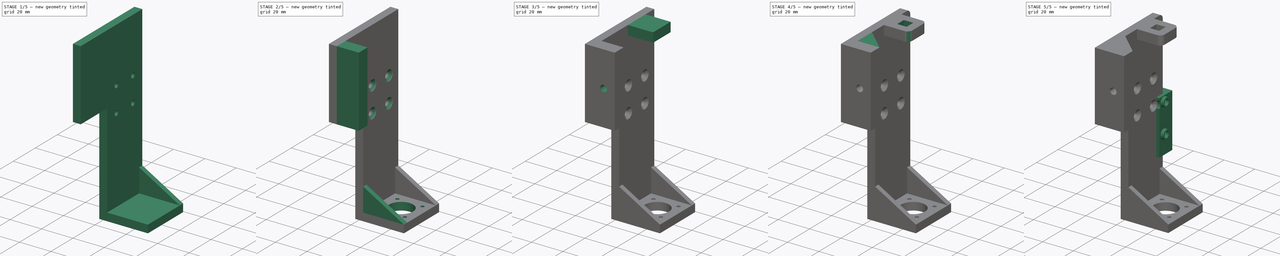
[diagram: build sequence overview — one tinted view per stage of 5, left to right]
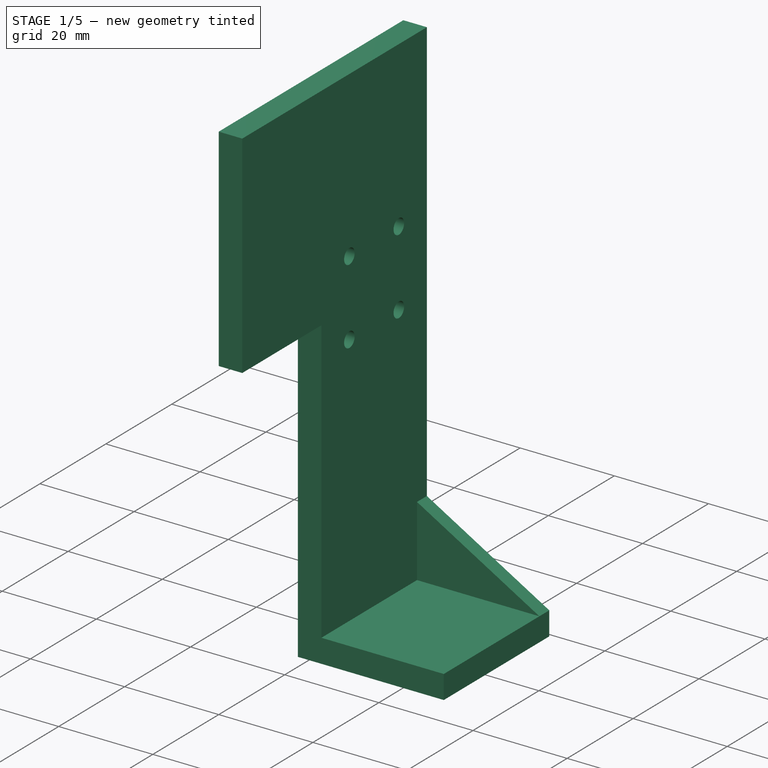
[diagram: stage 1 of 5 — iso view after this stage's code; geometry added in this stage tinted green]
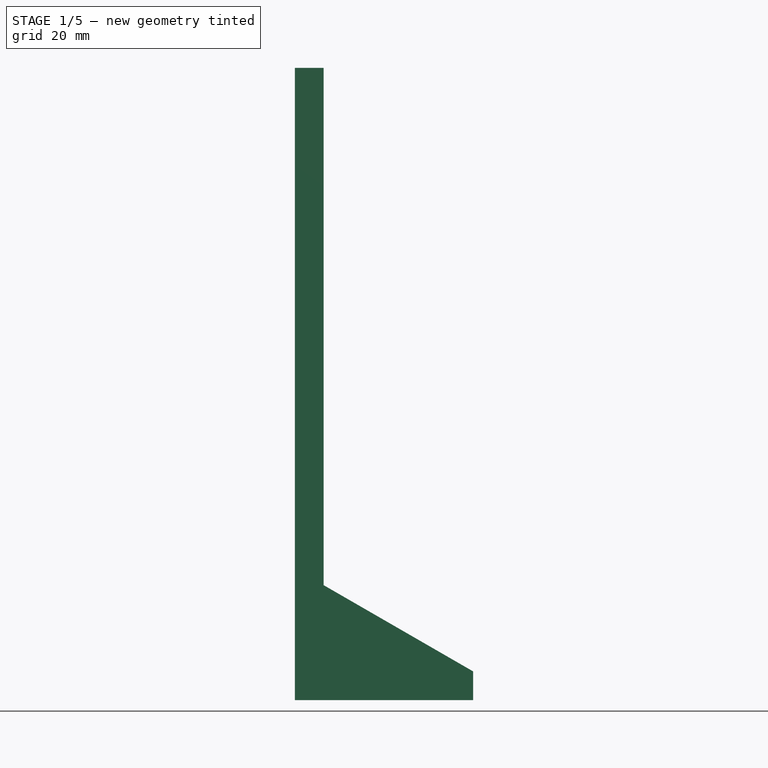
[diagram: stage 1 of 5 — front view after this stage's code; geometry added in this stage tinted green]
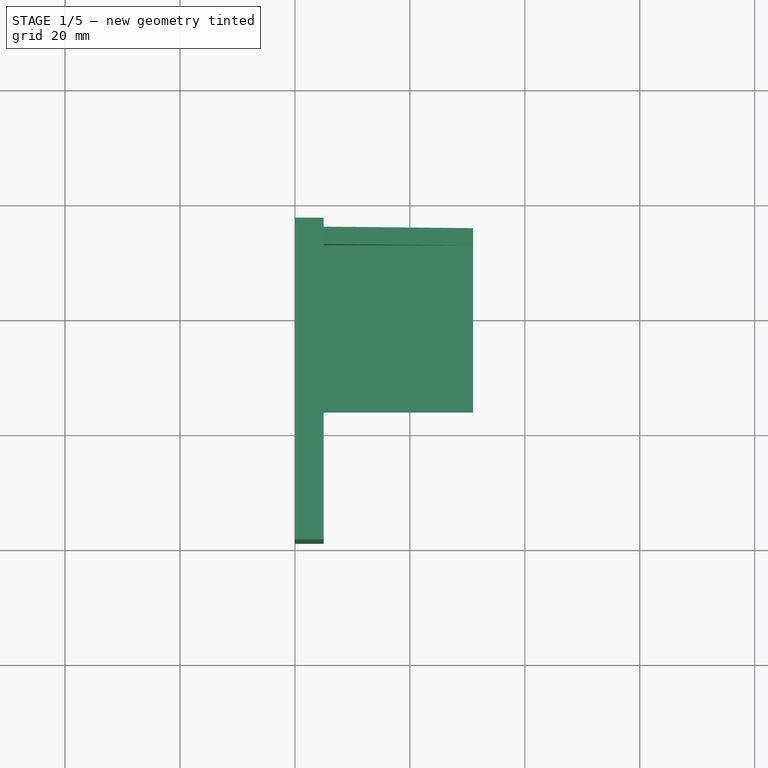
[diagram: stage 1 of 5 — top view after this stage's code; geometry added in this stage tinted green]
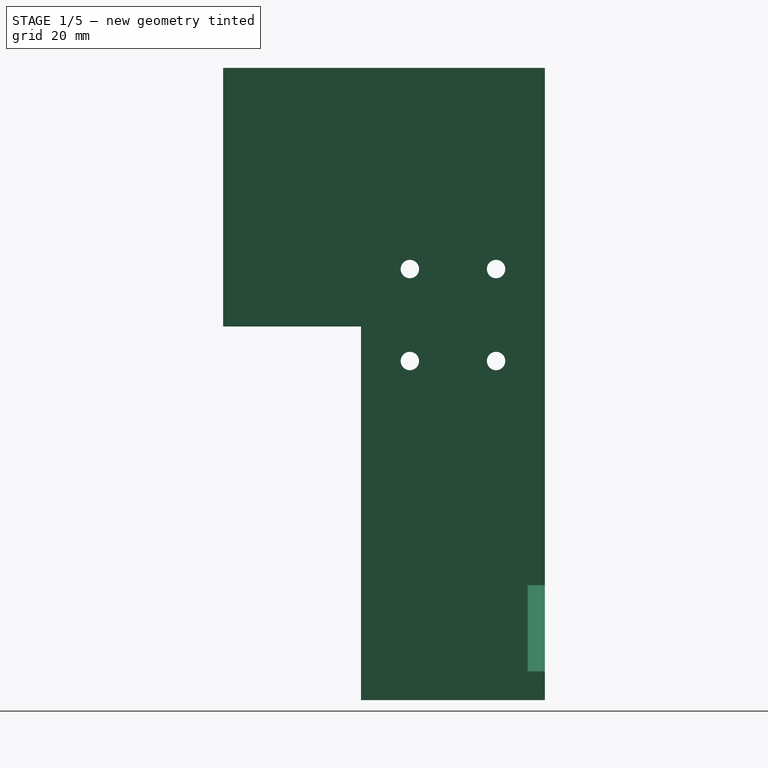
[diagram: stage 1 of 5 — right view after this stage's code; geometry added in this stage tinted green]
FCSTD DOCUMENT  (FreeCAD 0.20R29177 +233 (Git))
Label: Holder_nema_up_new
License: All rights reserved
LicenseURL: http://en.wikipedia.org/wiki/All_rights_reserved
objects: Sketcher::SketchObject×16, PartDesign::Pad×12, PartDesign::Plane×4, PartDesign::Pocket×4, PartDesign::Fillet×2, PartDesign::Hole×1, PartDesign::Body×1
note: 59 computed .brp shape members not serialized (recipe doc carries the construction recipe); baked Part::Feature solids carry a one-line shape summary decoded from their .brp

FEATURE [Sketcher::SketchObject] Sketch
  FullyConstrained = true
  MapMode = 5
  Placement = pos=(0,0,0) rot=(0.57735,0.57735,0.57735;2.0944rad)
  Support = -> [YZ_Plane]
  sketch-geometry (8):
    g0: Circle CenterX=-7.5 CenterY=6 CenterZ=0 NormalX=0 NormalY=0 NormalZ=1 AngleXU=0 Radius=1.6
    g1: Circle CenterX=7.5 CenterY=6 CenterZ=0 NormalX=0 NormalY=0 NormalZ=1 AngleXU=0 Radius=1.6
    g2: Circle CenterX=-7.5 CenterY=-10 CenterZ=0 NormalX=0 NormalY=0 NormalZ=1 AngleXU=0 Radius=1.6
    g3: Circle CenterX=7.5 CenterY=-10 CenterZ=0 NormalX=0 NormalY=0 NormalZ=1 AngleXU=0 Radius=1.6
    g4: LineSegment StartX=-16 StartY=41 StartZ=0 EndX=-16 EndY=-69 EndZ=0
    g5: LineSegment StartX=-16 StartY=41 StartZ=0 EndX=16 EndY=41 EndZ=0
    g6: LineSegment StartX=16 StartY=-69 StartZ=0 EndX=16 EndY=41 EndZ=0
    g7: LineSegment StartX=-16 StartY=-69 StartZ=0 EndX=16 EndY=-69 EndZ=0
  constraints (24):
    c: Distance(g2,g-2) = 7.5
    c: Distance(g0,g-2) = 7.5
    c: Distance(g1,g-2) = 7.5
    c: Distance(g3,g-2) = 7.5
    c: Distance(g2,g0) = 16
    c: Distance(g3,g1) = 16
    c: Diameter(g0) = 3.2
    c: Diameter(g1) = 3.2
    c: Diameter(g3) = 3.2
    c: Diameter(g2) = 3.2
    c: Vertical(g4)
    c: DistanceX(g4,g5) = 32
    c: Distance(g4,g-2) = 16
    c: Coincident(g5,g4)
    c: Coincident(g6,g5)
    c: Vertical(g6)
    c: Block(g5)
    c: DistanceY(g6,g6) = 110
    c: DistanceY(g4,g4) = 110
    c: Coincident(g7,g4)
    c: Coincident(g7,g6)
    c: Horizontal(g7)
    c: Distance(g0,g5) = 35
    c: Distance(g1,g5) = 35
FEATURE [PartDesign::Pad] Pad  label="Plate"
  Direction = (1,-2e-16,3e-16)
  Length = 5
  Length2 = 10
  Placement = pos=(0,0,0) rot=(0.57735,0.57735,0.57735;2.0944rad)
  Profile = -> Sketch
  ReferenceAxis = -> Sketch [N_Axis]
  Type = 0
FEATURE [Sketcher::SketchObject] Sketch010
  FullyConstrained = false
  MapMode = 5
  Placement = pos=(5,-1e-15,1e-15) rot=(0.57735,0.57735,0.57735;2.0944rad)
  sketch-geometry (4):
    g0: LineSegment StartX=-16 StartY=-4 StartZ=0 EndX=-40 EndY=-4 EndZ=0
    g1: LineSegment StartX=-40 StartY=-4 StartZ=0 EndX=-40 EndY=41 EndZ=0
    g2: LineSegment StartX=-40 StartY=41 StartZ=0 EndX=-16 EndY=41 EndZ=0
    g3: LineSegment StartX=-16 StartY=41 StartZ=0 EndX=-16 EndY=-4 EndZ=0
  constraints (9):
    c: Coincident(g0,g1)
    c: Coincident(g1,g2)
    c: Coincident(g2,g3)
    c: Coincident(g3,g0)
    c: Horizontal(g0)
    c: Horizontal(g2)
    c: Vertical(g1)
    c: Vertical(g3)
    c: DistanceX(g2,g2) = 24
FEATURE [PartDesign::Pad] Pad004  label="belt hold plate"
  BaseFeature = -> Pad
  Direction = (1,0,0)
  Length = 5
  Length2 = 10
  Placement = pos=(0,0,0) rot=(0.57735,0.57735,0.57735;2.0944rad)
  Profile = -> Sketch010
  ReferenceAxis = -> Sketch010 [N_Axis]
  Reversed = true
  Type = 0
FEATURE [Sketcher::SketchObject] Sketch011
  ExternalGeometry = -> [Pad004]
  FullyConstrained = true
  MapMode = 5
  Placement = pos=(5,-1.1e-15,1.1e-15) rot=(0.57735,0.57735,0.57735;2.0944rad)
  Support = -> [Pad004]
  sketch-geometry (4):
    g0: LineSegment StartX=-16 StartY=-69 StartZ=0 EndX=16 EndY=-69 EndZ=0
    g1: LineSegment StartX=16 StartY=-69 StartZ=0 EndX=16 EndY=-64 EndZ=0
    g2: LineSegment StartX=16 StartY=-64 StartZ=0 EndX=-16 EndY=-64 EndZ=0
    g3: LineSegment StartX=-16 StartY=-64 StartZ=0 EndX=-16 EndY=-69 EndZ=0
  constraints (11):
    c: Coincident(g0,g1)
    c: Coincident(g1,g2)
    c: Coincident(g2,g3)
    c: Coincident(g3,g0)
    c: Horizontal(g0)
    c: Horizontal(g2)
    c: Vertical(g1)
    c: Vertical(g3)
    c: Coincident(g0,g-5)
    c: PointOnObject(g1,g-3)
    c: DistanceY(g1,g1) = 5
FEATURE [PartDesign::Pad] Pad005  label="Motor plate"
  BaseFeature = -> Pad004
  Direction = (1,-9e-16,6e-16)
  Length = 26
  Length2 = 10
  Placement = pos=(0,0,0) rot=(0.57735,0.57735,0.57735;2.0944rad)
  Profile = -> Sketch011
  ReferenceAxis = -> Sketch011 [N_Axis]
  Type = 0
FEATURE [PartDesign::Plane] DatumPlane
  Length = 125.697
  MapMode = 5
  Placement = pos=(7e-15,16,-3.5e-15) rot=(0.57735,0.57735,0.57735;4.18879rad)
  ResizeMode = 0
  Support = -> [Pad005]
  Width = 71.6971
FEATURE [Sketcher::SketchObject] Sketch012
  ExternalGeometry = -> [Pad005]
  FullyConstrained = true
  MapMode = 5
  Placement = pos=(7e-15,16,-3.5e-15) rot=(0.57735,0.57735,0.57735;4.18879rad)
  Support = -> [DatumPlane]
  sketch-geometry (3):
    g0: LineSegment StartX=-64 StartY=31 StartZ=0 EndX=-64 EndY=5 EndZ=0
    g1: LineSegment StartX=-64 StartY=5 StartZ=0 EndX=-49 EndY=5 EndZ=0
    g2: LineSegment StartX=-64 StartY=31 StartZ=0 EndX=-49 EndY=5 EndZ=0
  constraints (7):
    c: Coincident(g0,g-4)
    c: Coincident(g0,g-4)
    c: Coincident(g1,g0)
    c: PointOnObject(g1,g-3)
    c: DistanceX(g1,g1) = 15
    c: Coincident(g2,g0)
    c: Coincident(g2,g1)
FEATURE [PartDesign::Pad] Pad006  label="tring 1"
  BaseFeature = -> Pad005
  Direction = (5e-16,1,-9e-16)
  Length = 3
  Length2 = 10
  Placement = pos=(0,0,0) rot=(0.57735,0.57735,0.57735;2.0944rad)
  Profile = -> Sketch012
  ReferenceAxis = -> Sketch012 [N_Axis]
  Reversed = true
  Type = 0
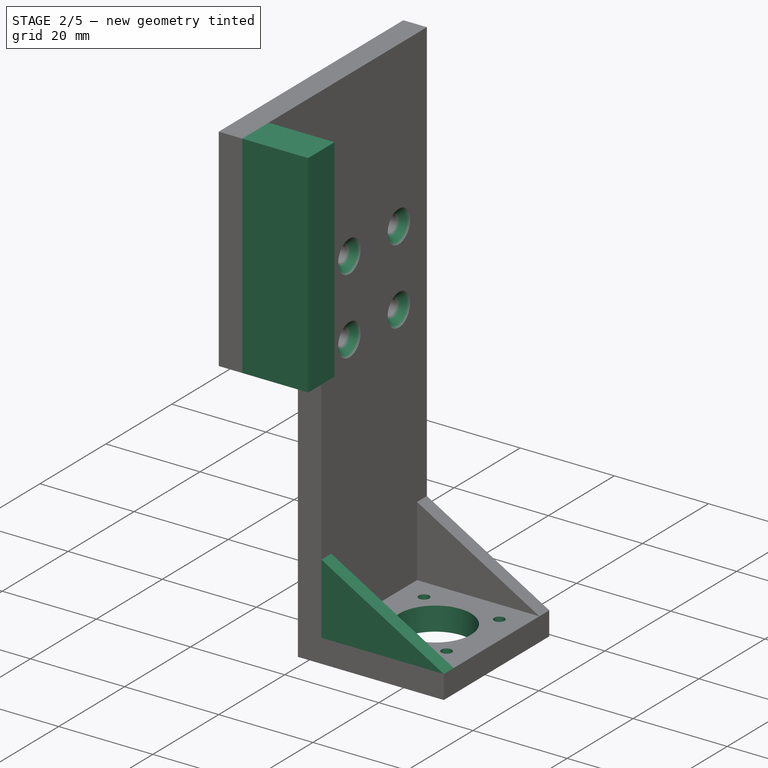
[diagram: stage 2 of 5 — iso view after this stage's code; geometry added in this stage tinted green]
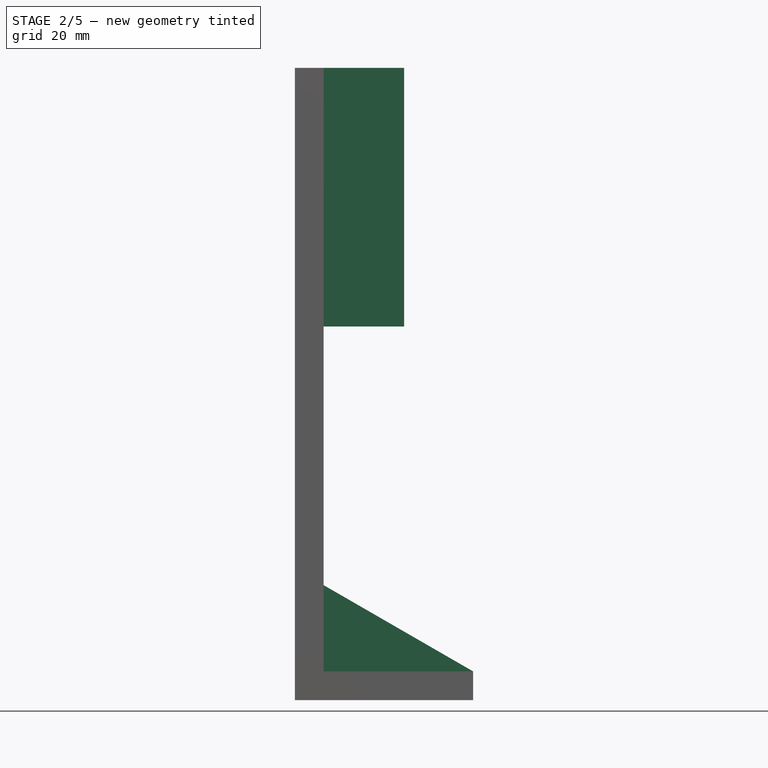
[diagram: stage 2 of 5 — front view after this stage's code; geometry added in this stage tinted green]
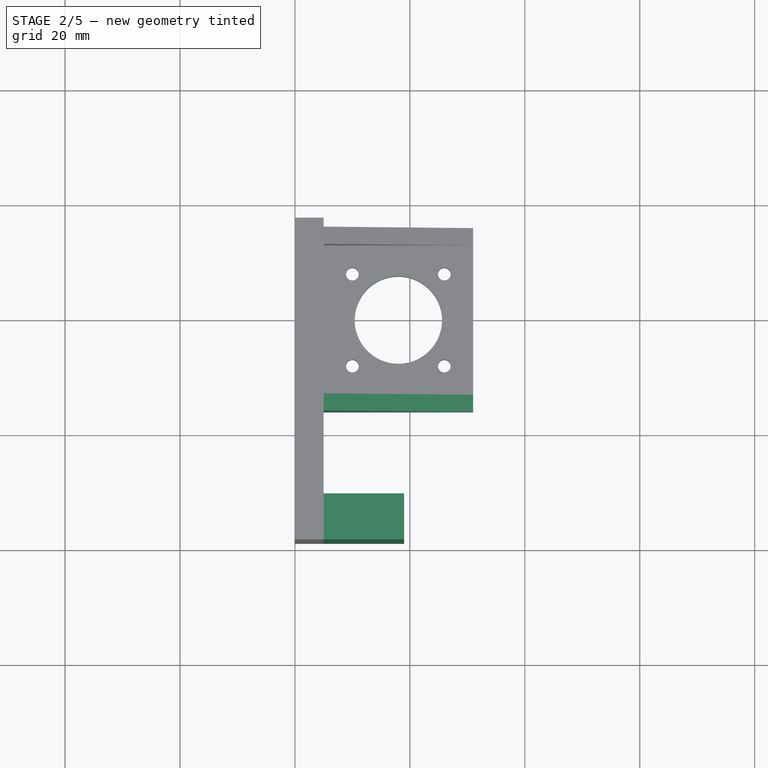
[diagram: stage 2 of 5 — top view after this stage's code; geometry added in this stage tinted green]
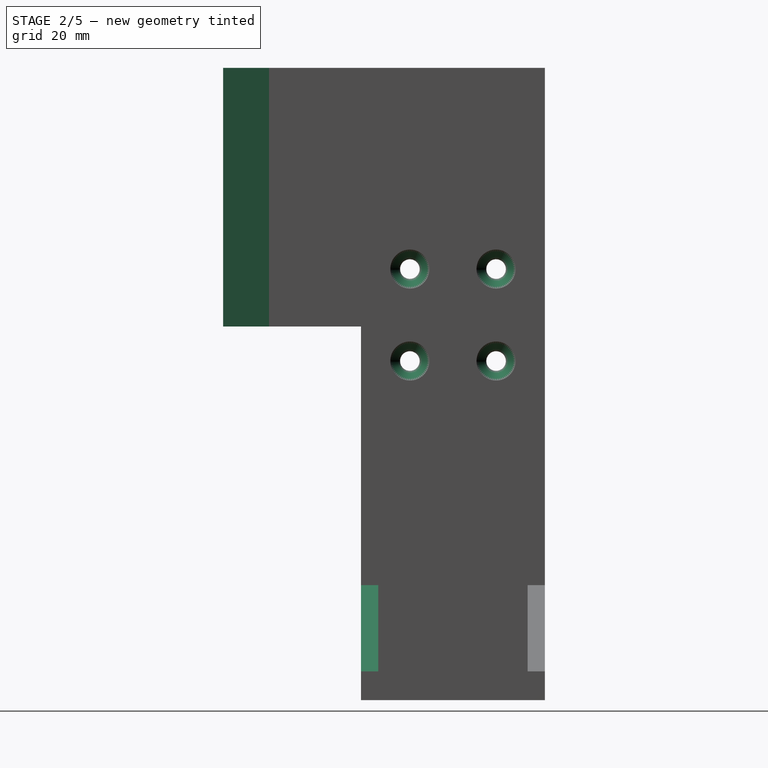
[diagram: stage 2 of 5 — right view after this stage's code; geometry added in this stage tinted green]
FEATURE [PartDesign::Plane] DatumPlane001
  Length = 125.697
  MapMode = 5
  Placement = pos=(-1.78e-14,-16,1.8e-15) rot=(-0.57735,-0.57735,0.57735;4.18879rad)
  ResizeMode = 0
  Support = -> [Pad005]
  Width = 71.6971
FEATURE [Sketcher::SketchObject] Sketch013
  ExternalGeometry = -> [Pad006]
  FullyConstrained = true
  MapMode = 5
  Placement = pos=(-1.78e-14,-16,1.8e-15) rot=(0.57735,0.57735,-0.57735;2.0944rad)
  Support = -> [DatumPlane001]
  sketch-geometry (3):
    g0: LineSegment StartX=64 StartY=31 StartZ=0 EndX=64 EndY=5 EndZ=0
    g1: LineSegment StartX=64 StartY=5 StartZ=0 EndX=49 EndY=5 EndZ=0
    g2: LineSegment StartX=49 StartY=5 StartZ=0 EndX=64 EndY=31 EndZ=0
  constraints (7):
    c: Coincident(g0,g-4)
    c: Coincident(g0,g-4)
    c: Coincident(g1,g0)
    c: PointOnObject(g1,g-3)
    c: DistanceX(g1,g1) = 15
    c: Coincident(g2,g1)
    c: Coincident(g2,g0)
FEATURE [PartDesign::Pad] Pad007  label="ting 2"
  BaseFeature = -> Pad006
  Direction = (-1.2e-15,-1,1e-16)
  Length = 3
  Length2 = 10
  Placement = pos=(0,0,0) rot=(0.57735,0.57735,0.57735;2.0944rad)
  Profile = -> Sketch013
  ReferenceAxis = -> Sketch013 [N_Axis]
  Reversed = true
  Type = 0
FEATURE [Sketcher::SketchObject] Sketch014
  ExternalGeometry = -> [Pad007]
  FullyConstrained = true
  MapMode = 5
  Placement = pos=(3.86e-14,-2.28e-14,-69) rot=(0.707107,0.707107,0;3.14159rad)
  Support = -> [Pad007]
  sketch-geometry (5):
    g0: Circle CenterX=0 CenterY=18 CenterZ=0 NormalX=0 NormalY=0 NormalZ=1 AngleXU=0 Radius=7.6
    g1: Circle CenterX=-8 CenterY=26 CenterZ=0 NormalX=0 NormalY=0 NormalZ=1 AngleXU=0 Radius=1.1
    g2: Circle CenterX=-8 CenterY=10 CenterZ=0 NormalX=0 NormalY=0 NormalZ=1 AngleXU=0 Radius=1.1
    g3: Circle CenterX=8 CenterY=10 CenterZ=0 NormalX=0 NormalY=0 NormalZ=1 AngleXU=0 Radius=1.1
    g4: Circle CenterX=8 CenterY=26 CenterZ=0 NormalX=0 NormalY=0 NormalZ=1 AngleXU=0 Radius=1.1
  constraints (15):
    c: PointOnObject(g0,g-2)
    c: Distance(g0,g-4) = 13
    c: Distance(g1,g4) = 16
    c: Distance(g1,g-2) = 8
    c: Distance(g1,g-5) = 5
    c: Distance(g4,g-5) = 5
    c: Distance(g4,g3) = 16
    c: Distance(g1,g2) = 16
    c: Distance(g2,g3) = 16
    c: Distance(g2,g-2) = 8
    c: Diameter(g1) = 2.2
    c: Diameter(g4) = 2.2
    c: Diameter(g3) = 2.2
    c: Diameter(g2) = 2.2
    c: Diameter(g0) = 15.2
FEATURE [PartDesign::Pocket] Pocket  label="motor hole"
  BaseFeature = -> Pad007
  Direction = (-1.3e-15,7e-16,1)
  Length = 5
  Length2 = 5
  Placement = pos=(0,0,0) rot=(0.57735,0.57735,0.57735;2.0944rad)
  Profile = -> Sketch014
  ReferenceAxis = -> Sketch014 [N_Axis]
  Type = 0
FEATURE [PartDesign::Hole] Hole  label="Hole for bolt m3"
  BaseFeature = -> Pocket
  CustomThreadClearance = 0
  Depth = 5
  DepthType = 0
  Diameter = 3.4
  DrillForDepth = false
  DrillPoint = 1
  DrillPointAngle = 118
  HoleCutCountersinkAngle = 90
  HoleCutCustomValues = false
  HoleCutDepth = 0
  HoleCutDiameter = 6.8
  HoleCutType = 4
  ModelThread = false
  Placement = pos=(0,0,0) rot=(0.57735,0.57735,0.57735;2.0944rad)
  Profile = -> Pocket [Edge28,Edge27,Edge25,Edge26]
  Tapered = false
  TaperedAngle = 90
  ThreadClass = 0
  ThreadDepth = 5
  ThreadDepthType = 0
  ThreadDirection = 0
  ThreadFit = 0
  ThreadSize = 9
  ThreadType = 2
  Threaded = false
  UseCustomThreadClearance = false
FEATURE [Sketcher::SketchObject] Sketch015
  ExternalGeometry = -> [Hole]
  FullyConstrained = true
  MapMode = 5
  Placement = pos=(5,0,0) rot=(0.57735,0.57735,0.57735;2.0944rad)
  Support = -> [Hole]
  sketch-geometry (4):
    g0: LineSegment StartX=-40 StartY=41 StartZ=0 EndX=-32 EndY=41 EndZ=0
    g1: LineSegment StartX=-32 StartY=41 StartZ=0 EndX=-32 EndY=-4 EndZ=0
    g2: LineSegment StartX=-32 StartY=-4 StartZ=0 EndX=-40 EndY=-4 EndZ=0
    g3: LineSegment StartX=-40 StartY=-4 StartZ=0 EndX=-40 EndY=41 EndZ=0
  constraints (11):
    c: Coincident(g0,g1)
    c: Coincident(g1,g2)
    c: Coincident(g2,g3)
    c: Coincident(g3,g0)
    c: Horizontal(g0)
    c: Horizontal(g2)
    c: Vertical(g1)
    c: Vertical(g3)
    c: Coincident(g0,g-5)
    c: PointOnObject(g1,g-4)
    c: DistanceX(g0,g0) = 8
FEATURE [PartDesign::Pad] Pad008  label="belt holder"
  BaseFeature = -> Hole
  Direction = (1,-1.6e-15,8e-16)
  Length = 14
  Length2 = 10
  Placement = pos=(0,0,0) rot=(0.57735,0.57735,0.57735;2.0944rad)
  Profile = -> Sketch015
  ReferenceAxis = -> Sketch015 [N_Axis]
  Type = 0
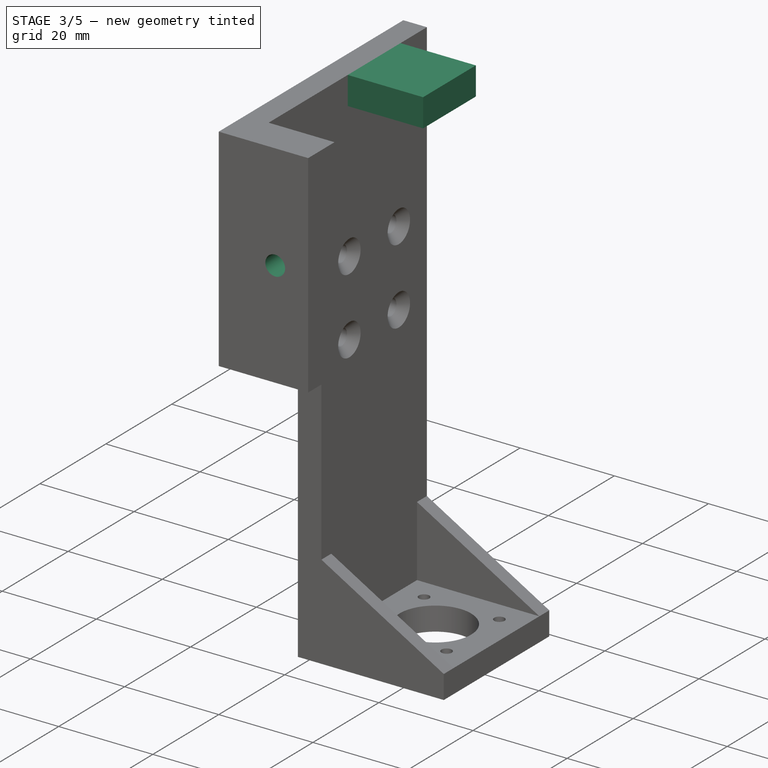
[diagram: stage 3 of 5 — iso view after this stage's code; geometry added in this stage tinted green]
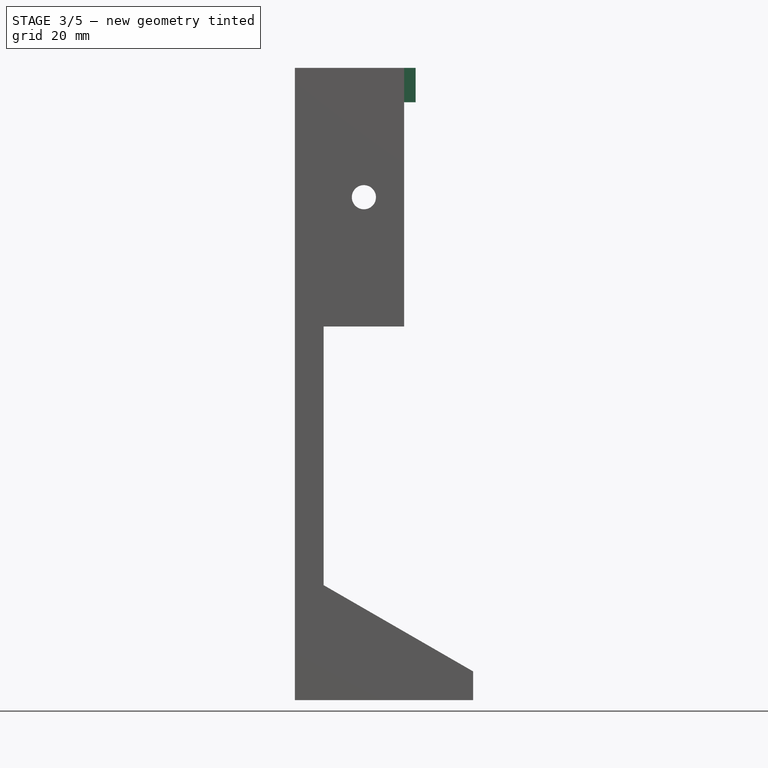
[diagram: stage 3 of 5 — front view after this stage's code; geometry added in this stage tinted green]
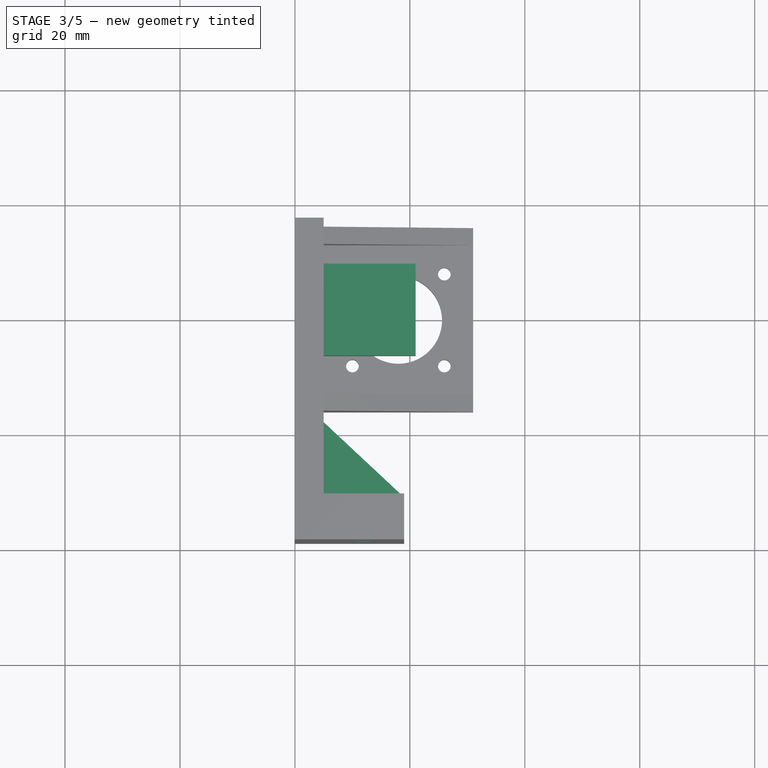
[diagram: stage 3 of 5 — top view after this stage's code; geometry added in this stage tinted green]
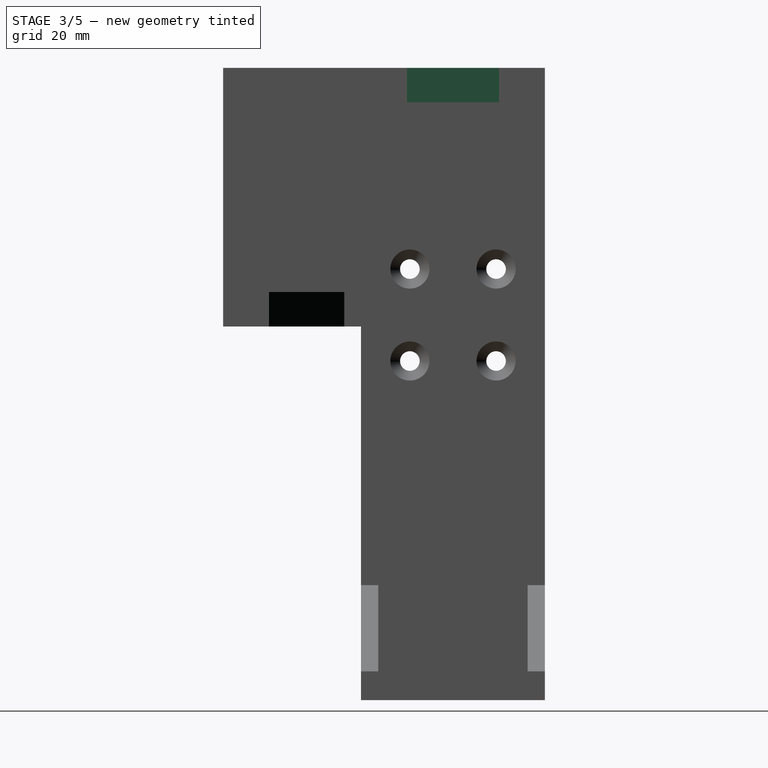
[diagram: stage 3 of 5 — right view after this stage's code; geometry added in this stage tinted green]
FEATURE [Sketcher::SketchObject] Sketch016
  ExternalGeometry = -> [Pad008]
  FullyConstrained = false
  MapMode = 5
  Placement = pos=(5,-1.1e-15,1.1e-15) rot=(0.57735,0.57735,0.57735;2.0944rad)
  Support = -> [Pad008]
  sketch-geometry (4):
    g0: LineSegment StartX=-8 StartY=41 StartZ=0 EndX=8 EndY=41 EndZ=0
    g1: LineSegment StartX=8 StartY=41 StartZ=0 EndX=8 EndY=35.0231 EndZ=0
    g2: LineSegment StartX=8 StartY=35.0231 StartZ=0 EndX=-8 EndY=35.0231 EndZ=0
    g3: LineSegment StartX=-8 StartY=35.0231 StartZ=0 EndX=-8 EndY=41 EndZ=0
  constraints (11):
    c: Coincident(g0,g1)
    c: Coincident(g1,g2)
    c: Coincident(g2,g3)
    c: Coincident(g3,g0)
    c: Horizontal(g0)
    c: Horizontal(g2)
    c: Vertical(g1)
    c: Vertical(g3)
    c: PointOnObject(g0,g-3)
    c: DistanceX(g0,g0) = 16
    c: Distance(g0,g-2) = 8
FEATURE [PartDesign::Pad] Pad009  label="Bolt sens stop"
  BaseFeature = -> Pad008
  Direction = (1,-2e-15,1.1e-15)
  Length = 16
  Length2 = 10
  Placement = pos=(0,0,0) rot=(0.57735,0.57735,0.57735;2.0944rad)
  Profile = -> Sketch016
  ReferenceAxis = -> Sketch016 [N_Axis]
  Type = 0
FEATURE [Sketcher::SketchObject] Sketch017
  ExternalGeometry = -> [Pad009]
  FullyConstrained = true
  MapMode = 5
  Placement = pos=(-7.12e-14,-40,4.4e-15) rot=(-0.57735,-0.57735,0.57735;4.18879rad)
  Support = -> [Pad009]
  sketch-geometry (1):
    g0: Circle CenterX=-18.5 CenterY=12 CenterZ=0 NormalX=0 NormalY=0 NormalZ=1 AngleXU=0 Radius=2.1
  constraints (4):
    c: Distance(g0,g-4) = 22.5
    c: Distance(g0,g-5) = 7
    c: Distance(g-5) = 45
    c: Diameter(g0) = 4.2
FEATURE [PartDesign::Pocket] Pocket001  label="Hole for belt holder"
  BaseFeature = -> Pad009
  Direction = (1.9e-15,1,-5e-16)
  Length = 8
  Length2 = 5
  Placement = pos=(0,0,0) rot=(0.57735,0.57735,0.57735;2.0944rad)
  Profile = -> Sketch017
  ReferenceAxis = -> Sketch017 [N_Axis]
  Type = 0
FEATURE [PartDesign::Plane] DatumPlane002
  Length = 77.0665
  MapMode = 5
  Placement = pos=(3.1e-15,-1.3e-15,-4) rot=(0.707107,0.707107,0;3.14159rad)
  ResizeMode = 0
  Support = -> [Pocket001]
  Width = 68.0665
FEATURE [Sketcher::SketchObject] Sketch018
  ExternalGeometry = -> [Pocket001]
  FullyConstrained = false
  MapMode = 5
  Placement = pos=(3.1e-15,-1.3e-15,-4) rot=(0.707107,0.707107,0;3.14159rad)
  Support = -> [DatumPlane002]
  sketch-geometry (3):
    g0: LineSegment StartX=-32 StartY=19 StartZ=0 EndX=-32 EndY=5 EndZ=0
    g1: LineSegment StartX=-32 StartY=5 StartZ=0 EndX=-18.9214 EndY=5 EndZ=0
    g2: LineSegment StartX=-18.9214 StartY=5 StartZ=0 EndX=-32 EndY=19 EndZ=0
  constraints (6):
    c: Coincident(g0,g-3)
    c: Coincident(g0,g-4)
    c: Coincident(g1,g0)
    c: PointOnObject(g1,g-4)
    c: Coincident(g2,g1)
    c: Coincident(g2,g0)
FEATURE [PartDesign::Pad] Pad010  label="Tring 1 belt"
  BaseFeature = -> Pocket001
  Direction = (1.6e-15,-7e-16,-1)
  Length = 6
  Length2 = 10
  Placement = pos=(0,0,0) rot=(0.57735,0.57735,0.57735;2.0944rad)
  Profile = -> Sketch018
  ReferenceAxis = -> Sketch018 [N_Axis]
  Reversed = true
  Type = 0
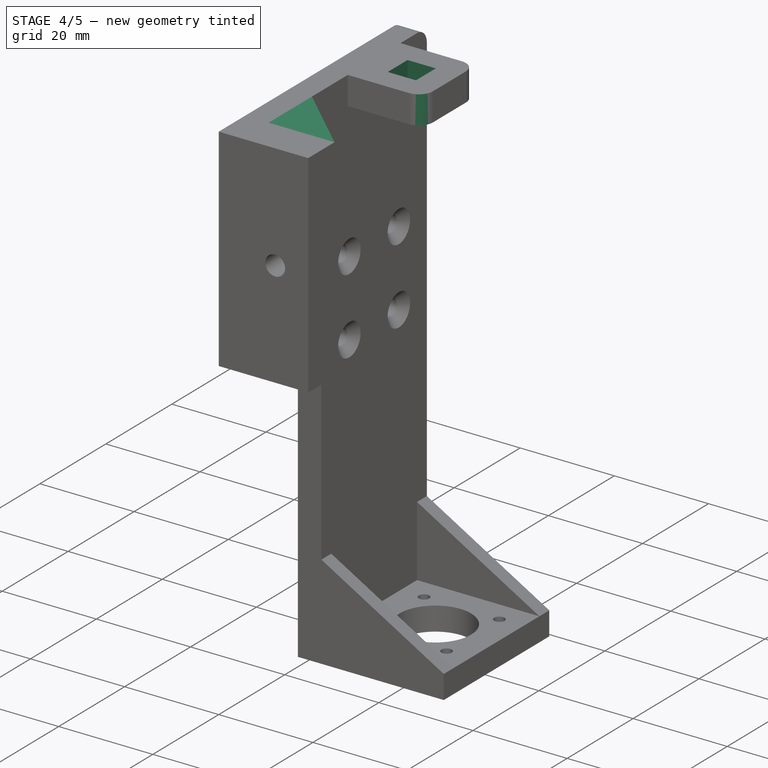
[diagram: stage 4 of 5 — iso view after this stage's code; geometry added in this stage tinted green]
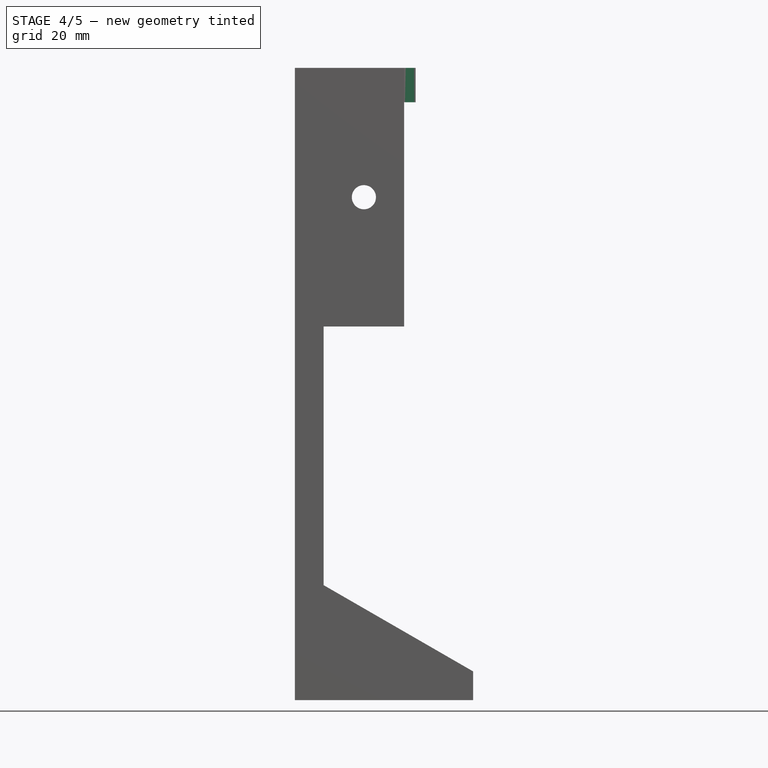
[diagram: stage 4 of 5 — front view after this stage's code; geometry added in this stage tinted green]
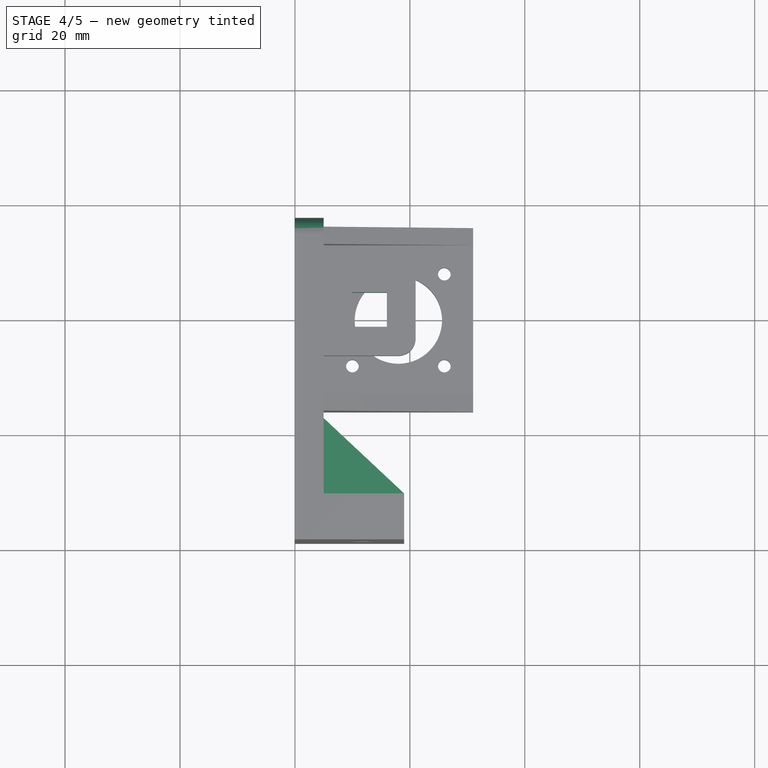
[diagram: stage 4 of 5 — top view after this stage's code; geometry added in this stage tinted green]
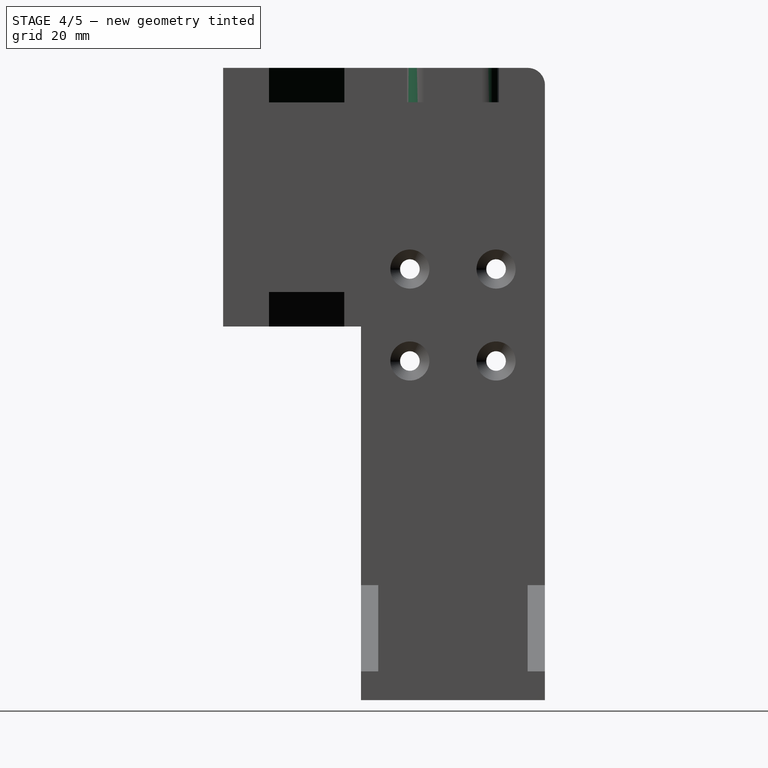
[diagram: stage 4 of 5 — right view after this stage's code; geometry added in this stage tinted green]
FEATURE [PartDesign::Plane] DatumPlane003
  Length = 77.0665
  MapMode = 5
  Placement = pos=(-3.2e-14,1.35e-14,41) rot=(0,0,-1;1.5708rad)
  ResizeMode = 0
  Support = -> [Pad010]
  Width = 68.0665
FEATURE [Sketcher::SketchObject] Sketch019
  ExternalGeometry = -> [Pad010]
  FullyConstrained = false
  MapMode = 5
  Placement = pos=(-3.2e-14,1.35e-14,41) rot=(0,0,-1;1.5708rad)
  Support = -> [DatumPlane003]
  sketch-geometry (3):
    g0: LineSegment StartX=32 StartY=19 StartZ=0 EndX=32 EndY=5 EndZ=0
    g1: LineSegment StartX=32 StartY=5 StartZ=0 EndX=18.8895 EndY=5 EndZ=0
    g2: LineSegment StartX=18.8895 StartY=5 StartZ=0 EndX=32 EndY=19 EndZ=0
  constraints (6):
    c: Coincident(g0,g-3)
    c: Coincident(g0,g-4)
    c: Coincident(g1,g0)
    c: PointOnObject(g1,g-4)
    c: Coincident(g2,g1)
    c: Coincident(g2,g0)
FEATURE [PartDesign::Pad] Pad011  label="tring 2 belt"
  BaseFeature = -> Pad010
  Direction = (-1.9e-15,8e-16,1)
  Length = 6
  Length2 = 10
  Placement = pos=(0,0,0) rot=(0.57735,0.57735,0.57735;2.0944rad)
  Profile = -> Sketch019
  ReferenceAxis = -> Sketch019 [N_Axis]
  Reversed = true
  Type = 0
FEATURE [Sketcher::SketchObject] Sketch020
  ExternalGeometry = -> [Pad011]
  FullyConstrained = true
  MapMode = 5
  Placement = pos=(-4.55e-14,9e-15,41) rot=(0,0,-1;1.5708rad)
  Support = -> [Pad011]
  sketch-geometry (4):
    g0: LineSegment StartX=-3 StartY=16 StartZ=0 EndX=3 EndY=16 EndZ=0
    g1: LineSegment StartX=3 StartY=16 StartZ=0 EndX=3 EndY=10 EndZ=0
    g2: LineSegment StartX=3 StartY=10 StartZ=0 EndX=-3 EndY=10 EndZ=0
    g3: LineSegment StartX=-3 StartY=10 StartZ=0 EndX=-3 EndY=16 EndZ=0
  constraints (12):
    c: Coincident(g0,g1)
    c: Coincident(g1,g2)
    c: Coincident(g2,g3)
    c: Coincident(g3,g0)
    c: Horizontal(g0)
    c: Horizontal(g2)
    c: Vertical(g1)
    c: Vertical(g3)
    c: DistanceX(g0,g0) = 6
    c: DistanceY(g3,g3) = 6
    c: Distance(g0,g-3) = 5
    c: Distance(g0,g-5) = 5
FEATURE [PartDesign::Pocket] Pocket002  label="Sensor bolt hole"
  BaseFeature = -> Pad011
  Direction = (1.1e-15,-2e-16,-1)
  Length = 7
  Length2 = 5
  Placement = pos=(0,0,0) rot=(0.57735,0.57735,0.57735;2.0944rad)
  Profile = -> Sketch020
  ReferenceAxis = -> Sketch020 [N_Axis]
  Type = 0
FEATURE [PartDesign::Fillet] Fillet
  Base = -> Pocket002 [Edge45]
  BaseFeature = -> Pocket002
  Placement = pos=(0,0,0) rot=(0.57735,0.57735,0.57735;2.0944rad)
  Radius = 3
  SupportTransform = false
  UseAllEdges = false
FEATURE [PartDesign::Fillet] Fillet001
  Base = -> Fillet [Edge96,Edge105]
  BaseFeature = -> Fillet
  Placement = pos=(0,0,0) rot=(0.57735,0.57735,0.57735;2.0944rad)
  Radius = 3
  SupportTransform = false
  UseAllEdges = false
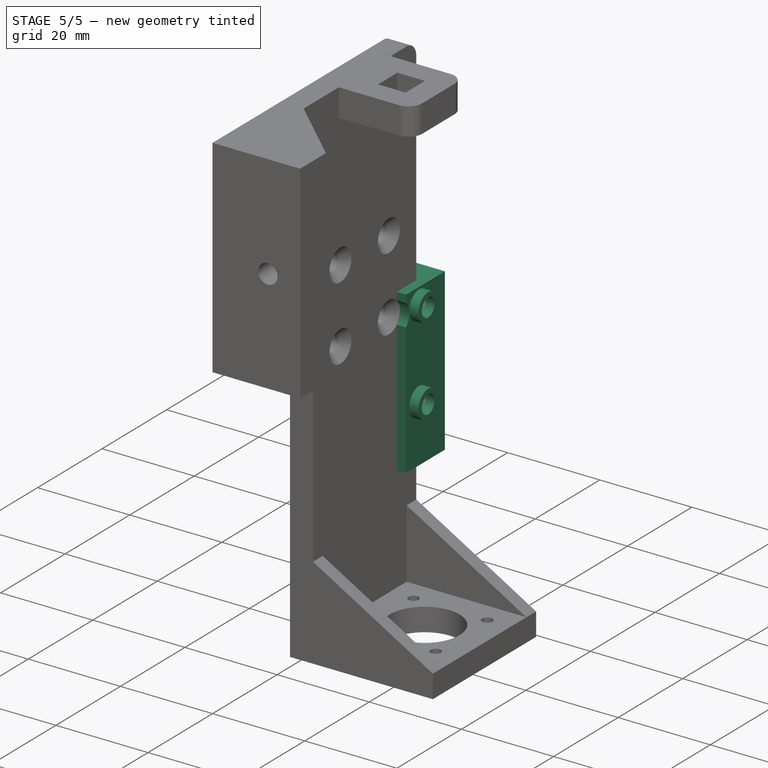
[diagram: stage 5 of 5 — iso view after this stage's code; geometry added in this stage tinted green]
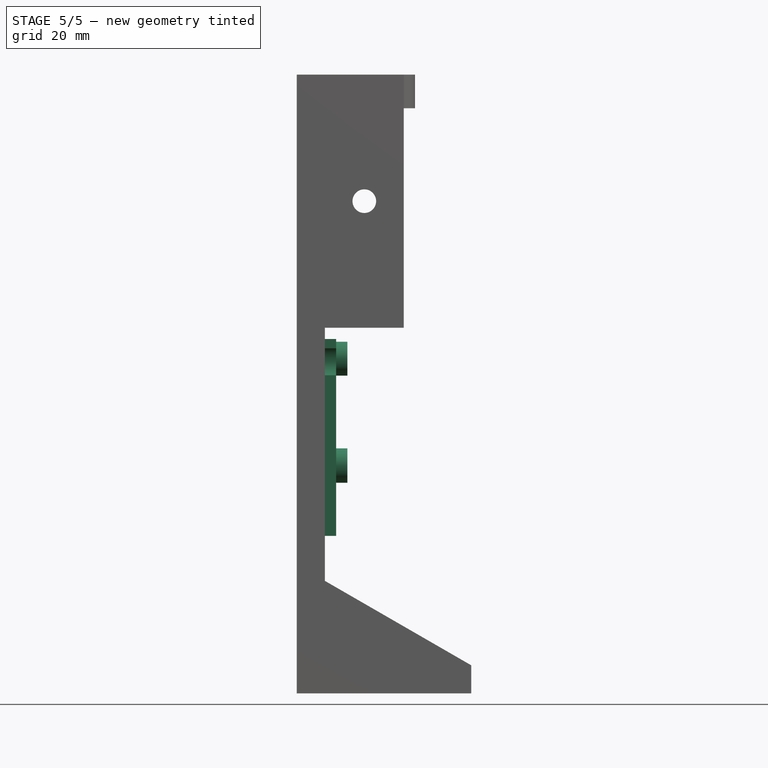
[diagram: stage 5 of 5 — front view after this stage's code; geometry added in this stage tinted green]
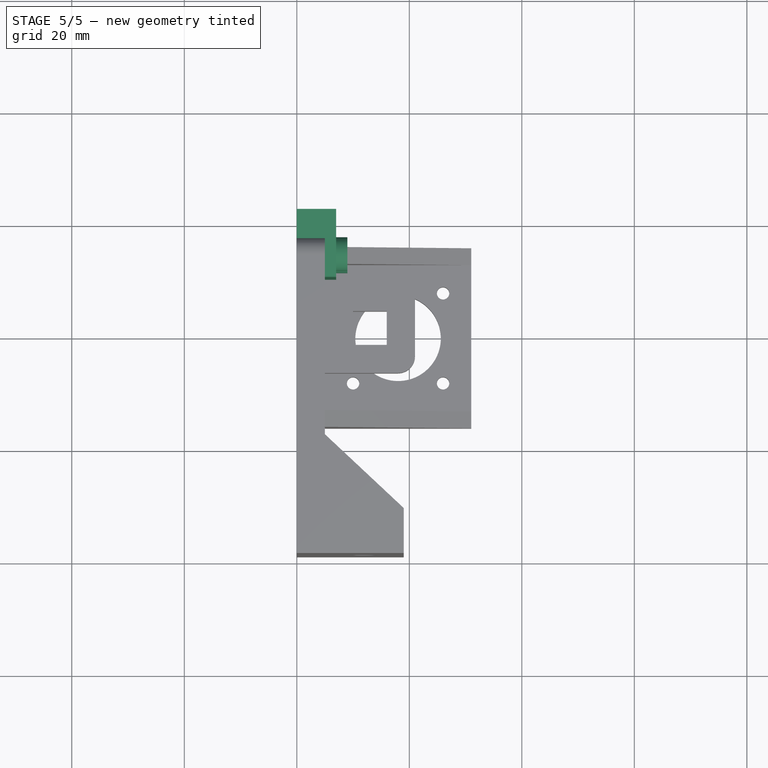
[diagram: stage 5 of 5 — top view after this stage's code; geometry added in this stage tinted green]
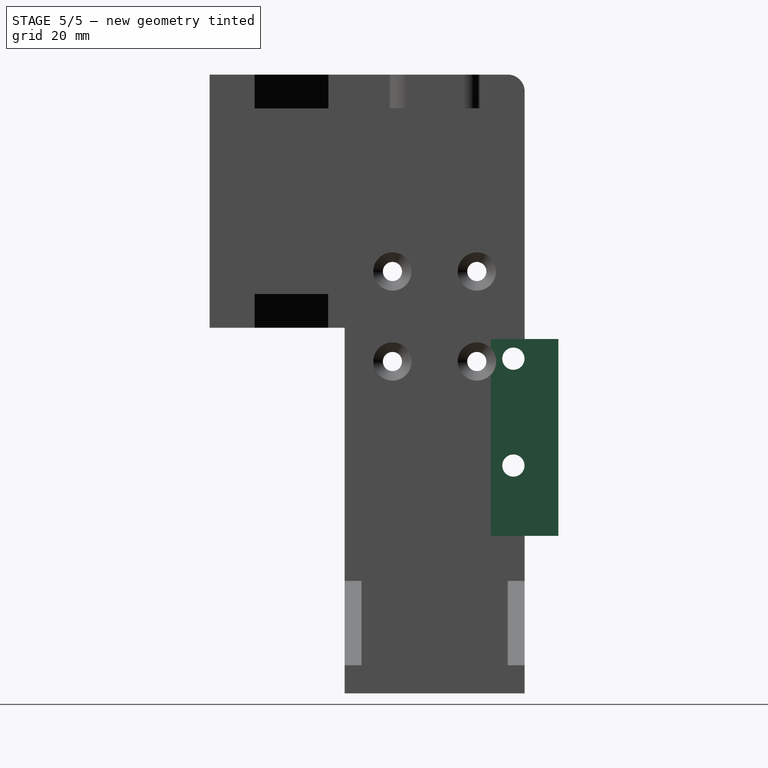
[diagram: stage 5 of 5 — right view after this stage's code; geometry added in this stage tinted green]
FEATURE [Sketcher::SketchObject] Sketch021
  ExternalGeometry = -> [Fillet001]
  FullyConstrained = false
  MapMode = 5
  Placement = pos=(5,-1.1e-15,1.7e-15) rot=(0.57735,0.57735,0.57735;2.0944rad)
  Support = -> [Fillet001]
  sketch-geometry (7):
    g0: LineSegment StartX=-21 StartY=-28 StartZ=0 EndX=39 EndY=-28 EndZ=0
    g1: LineSegment StartX=10 StartY=-6 StartZ=0 EndX=22 EndY=-6 EndZ=0
    g2: LineSegment StartX=22 StartY=-6 StartZ=0 EndX=22 EndY=-41 EndZ=0
    g3: LineSegment StartX=22 StartY=-41 StartZ=0 EndX=10 EndY=-41 EndZ=0
    g4: LineSegment StartX=10 StartY=-41 StartZ=0 EndX=10 EndY=-12.4449 EndZ=0
    g5: ArcOfCircle CenterX=7.5292 CenterY=-10.0467 CenterZ=0 NormalX=0 NormalY=0 NormalZ=1 AngleXU=0 Radius=3.44328 StartAngle=5.5127 EndAngle=7.05367
    g6: LineSegment StartX=10 StartY=-7.64854 StartZ=0 EndX=10 EndY=-6 EndZ=0
  constraints (17):
    c: Horizontal(g0)
    c: Distance(g-3,g0) = 41
    c: Coincident(g1,g2)
    c: Coincident(g2,g3)
    c: Coincident(g3,g4)
    c: Coincident(g6,g1)
    c: Horizontal(g1)
    c: Horizontal(g3)
    c: Vertical(g2)
    c: Vertical(g4)
    c: Block(g0)
    c: Distance(g1,g0) = 22
    c: Distance(g2,g0) = 13
    c: Distance(g1,g-4) = 6
    c: Distance(g1,g-4) = 6
    c: Coincident(g4,g5)
    c: Coincident(g6,g5)
FEATURE [PartDesign::Pad] Pad012
  BaseFeature = -> Fillet001
  Direction = (1,-2e-16,2e-16)
  Length = 2
  Length2 = 10
  Placement = pos=(0,0,0) rot=(0.57735,0.57735,0.57735;2.0944rad)
  Profile = -> Sketch021
  ReferenceAxis = -> Sketch021 [N_Axis]
  Type = 0
FEATURE [Sketcher::SketchObject] Sketch023
  ExternalGeometry = -> [Pad012]
  FullyConstrained = false
  MapMode = 5
  Placement = pos=(7,-1.6e-15,3.1e-15) rot=(0.57735,0.57735,0.57735;2.0944rad)
  sketch-geometry (3):
    g0: Circle CenterX=14 CenterY=-9.5 CenterZ=0 NormalX=0 NormalY=0 NormalZ=1 AngleXU=0 Radius=1.975
    g1: Circle CenterX=14 CenterY=-28.5 CenterZ=0 NormalX=0 NormalY=0 NormalZ=1 AngleXU=0 Radius=1.975
    g2: LineSegment StartX=-13 StartY=-21 StartZ=0 EndX=23.8473 EndY=-21 EndZ=0
  constraints (7):
    c: Distance(g1,g0) = 19
    c: Diameter(g0) = 3.95
    c: Diameter(g1) = 3.95
    c: Horizontal(g2)
    c: Block(g2)
    c: Distance(g1,g2) = 7.5
    c: Distance(g0,g-3) = 3.5
FEATURE [PartDesign::Pocket] Pocket003
  BaseFeature = -> Pad012
  Direction = (-1,1e-16,-3e-16)
  Length = 7
  Length2 = 5
  Placement = pos=(0,0,0) rot=(0.57735,0.57735,0.57735;2.0944rad)
  Profile = -> Sketch023
  ReferenceAxis = -> Sketch023 [N_Axis]
  Type = 0
FEATURE [Sketcher::SketchObject] Sketch024
  ExternalGeometry = -> [Pocket003]
  FullyConstrained = false
  MapMode = 5
  Placement = pos=(7,-1.5e-15,3.1e-15) rot=(0.57735,0.57735,0.57735;2.0944rad)
  Support = -> [Pocket003]
  sketch-geometry (4):
    g0: Circle CenterX=14 CenterY=-9.5 CenterZ=0 NormalX=0 NormalY=0 NormalZ=1 AngleXU=0 Radius=1.975
    g1: Circle CenterX=14 CenterY=-9.5 CenterZ=0 NormalX=0 NormalY=0 NormalZ=1 AngleXU=0 Radius=3.01236
    g2: Circle CenterX=14 CenterY=-28.5 CenterZ=0 NormalX=0 NormalY=0 NormalZ=1 AngleXU=0 Radius=1.975
    g3: Circle CenterX=14 CenterY=-28.5 CenterZ=0 NormalX=0 NormalY=0 NormalZ=1 AngleXU=0 Radius=3.04738
  constraints (4):
    c: Coincident(g0,g-3)
    c: Coincident(g1,g0)
    c: Coincident(g2,g-4)
    c: Coincident(g3,g2)
FEATURE [PartDesign::Pad] Pad013
  BaseFeature = -> Pocket003
  Direction = (1,-1e-16,3e-16)
  Length = 2
  Length2 = 10
  Placement = pos=(0,0,0) rot=(0.57735,0.57735,0.57735;2.0944rad)
  Profile = -> Sketch024
  ReferenceAxis = -> Sketch024 [N_Axis]
  Type = 0
FEATURE [Sketcher::SketchObject] Sketch025
  ExternalGeometry = -> [Pad013]
  FullyConstrained = true
  MapMode = 5
  Placement = pos=(5,-1.1e-15,2.8e-15) rot=(0.57735,0.57735,-0.57735;4.18879rad)
  Support = -> [Pad013]
  sketch-geometry (4):
    g0: LineSegment StartX=16 StartY=41 StartZ=0 EndX=22 EndY=41 EndZ=0
    g1: LineSegment StartX=22 StartY=41 StartZ=0 EndX=22 EndY=6 EndZ=0
    g2: LineSegment StartX=22 StartY=6 StartZ=0 EndX=16 EndY=6 EndZ=0
    g3: LineSegment StartX=16 StartY=6 StartZ=0 EndX=16 EndY=41 EndZ=0
  constraints (10):
    c: Coincident(g0,g1)
    c: Coincident(g1,g2)
    c: Coincident(g2,g3)
    c: Coincident(g3,g0)
    c: Horizontal(g0)
    c: Horizontal(g2)
    c: Vertical(g1)
    c: Vertical(g3)
    c: Coincident(g0,g-3)
    c: Coincident(g1,g-5)
FEATURE [PartDesign::Pad] Pad014
  BaseFeature = -> Pad013
  Direction = (-1,0,-4e-16)
  Length = 5
  Length2 = 10
  Placement = pos=(0,0,0) rot=(0.57735,0.57735,0.57735;2.0944rad)
  Profile = -> Sketch025
  ReferenceAxis = -> Sketch025 [N_Axis]
  Type = 0
FEATURE [PartDesign::Body] Body
  Group = -> [Sketch,Pad,Sketch010,Pad004,Sketch011,Pad005,DatumPlane,Sketch012,Pad006,DatumPlane001,Sketch013,Pad007,Sketch014,Pocket,Hole,Sketch015,Pad008,Sketch016,Pad009,Sketch017,Pocket001,DatumPlane002,Sketch018,Pad010,DatumPlane003,Sketch019,Pad011,Sketch020,Pocket002,Fillet,Fillet001,Sketch021,Pad012,Sketch023,Pocket003,Sketch024,Pad013,Sketch025,Pad014]
  Origin = -> Origin
  Tip = -> Pad014
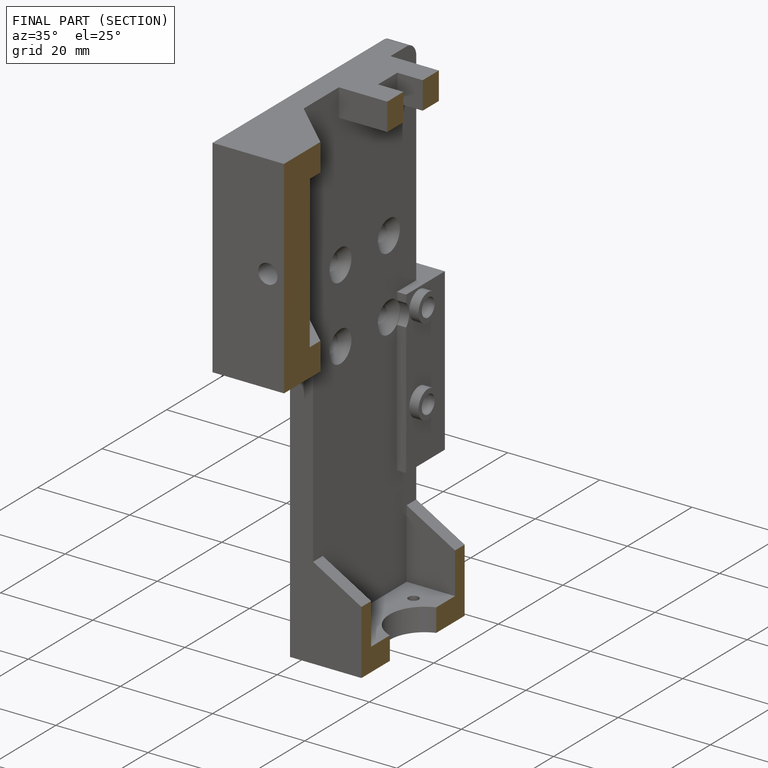
[diagram: finished part — half-section view (interior)]
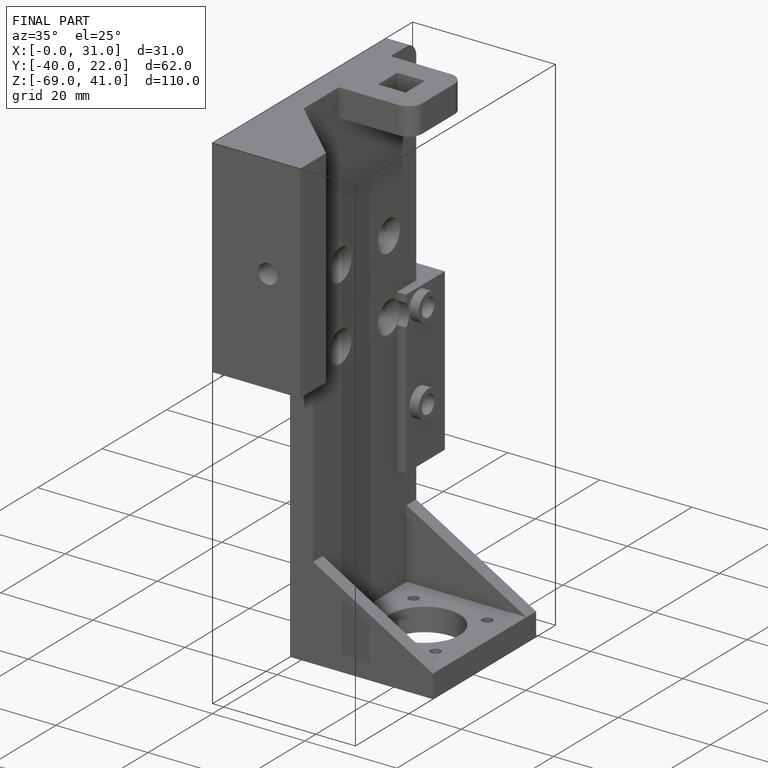
[diagram: finished part — iso view with bounding-box wireframe]
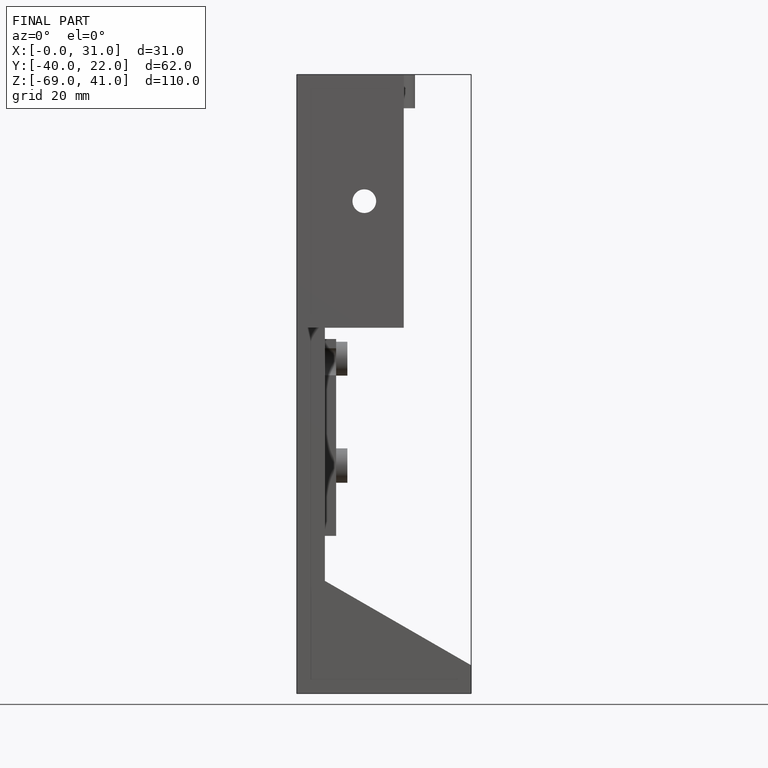
[diagram: finished part — front view with bounding-box wireframe]
